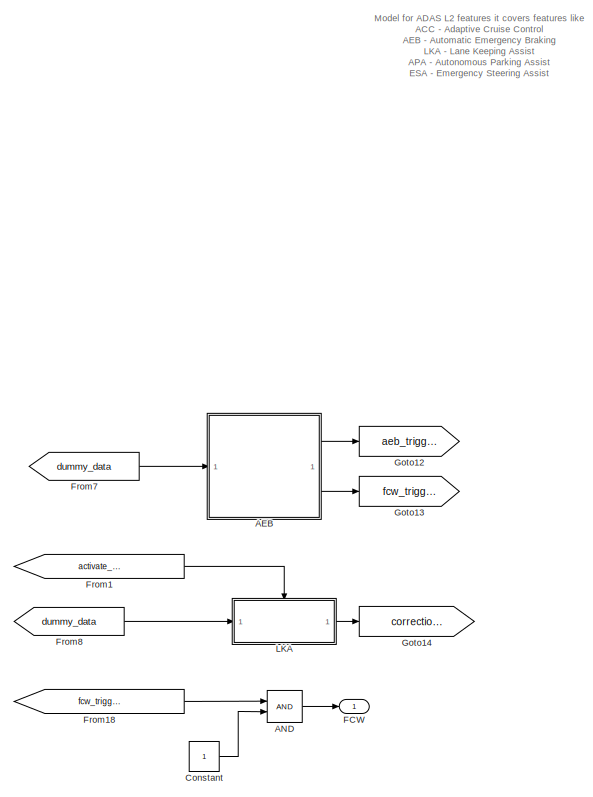
[diagram: root canvas - part 1/4, central region]
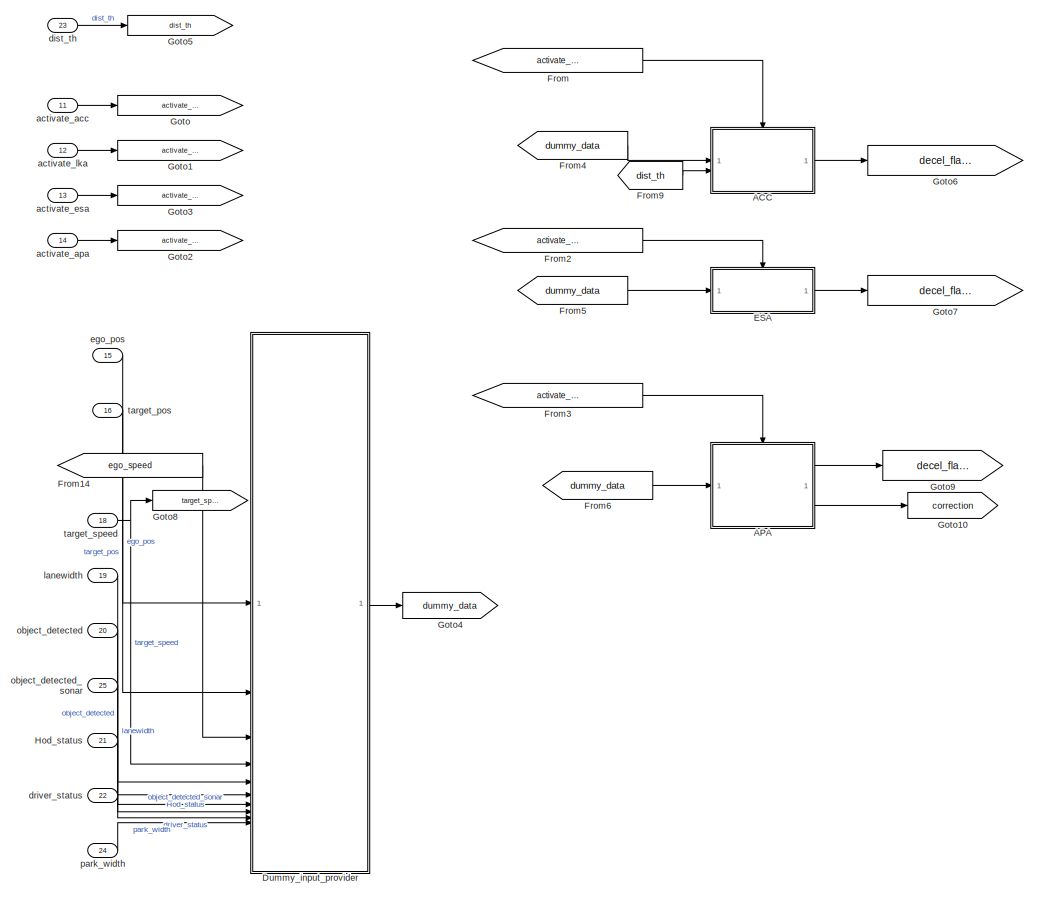
[diagram: root canvas - part 2/4, left side, full height]
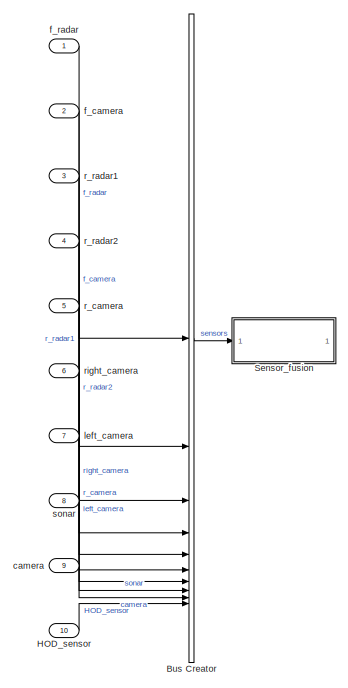
[diagram: root canvas - part 3/4, middle left region]
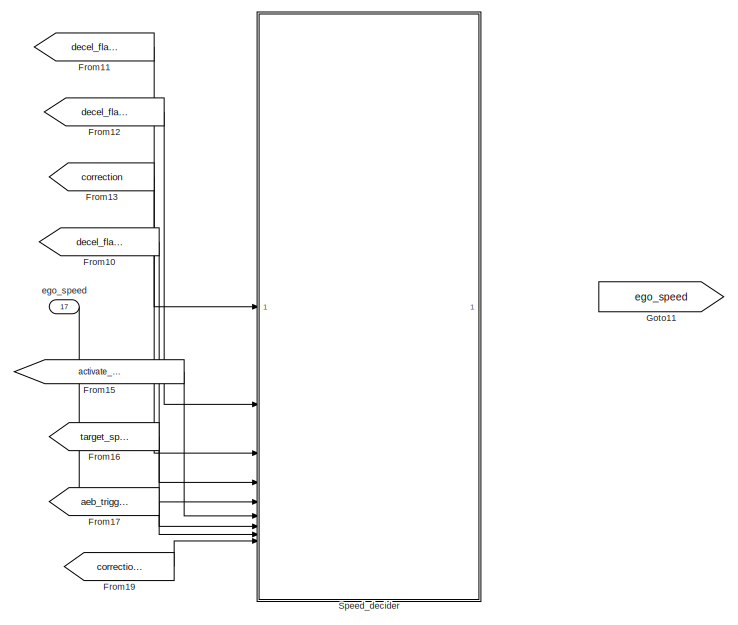
[diagram: root canvas - part 4/4, middle right region]
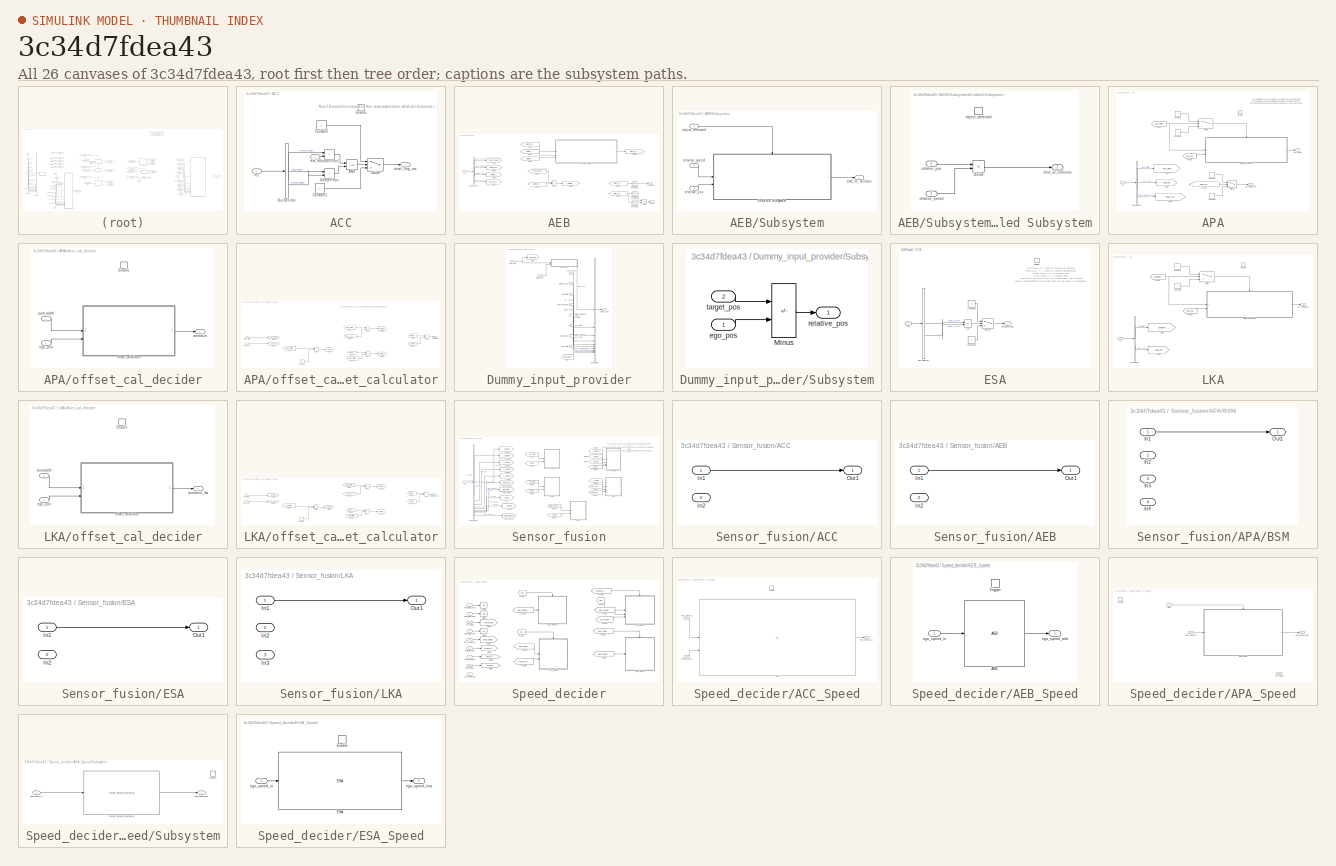
[diagram: thumbnail index - all 26 canvases of the model, root first then tree order]
MODEL slx_3c34d7fdea43
KIND model
CONFIG AbsTol = auto
CONFIG EnableMultiTasking = off
CONFIG FixedStep = auto
CONFIG MaxStep = auto
CONFIG MinStep = auto
CONFIG RelTol = 1e-3
CONFIG SampleTimeConstraint = Unconstrained
CONFIG SolverName = VariableStepAuto
CONFIG StartTime = 0.0
CONFIG StopTime = 10.0
BLOCK [SubSystem] ACC
  TreatAsAtomicUnit = on
BLOCK [Logic] ACC/AND
  AllPortsSameDT = off
  IconShape = distinctive
  OutDataTypeStr = boolean
BLOCK [BusSelector] ACC/Bus Selector
  OutputSignals = relative_pos,ego_speed,target_speed
BLOCK [Constant] ACC/Constant
BLOCK [Constant] ACC/Constant1
  Value = 0
BLOCK [EnablePort] ACC/Enable
  StatesWhenEnabling = reset
BLOCK [RelationalOperator] ACC/GreaterThan
  InputSameDT = off
  Operator = >
  OutDataTypeStr = boolean
  RndMeth = Simplest
BLOCK [RelationalOperator] ACC/GreaterThan1
  InputSameDT = off
  Operator = >
  OutDataTypeStr = boolean
  RndMeth = Simplest
BLOCK [Inport] ACC/In1
BLOCK [Switch] ACC/Switch
  Criteria = u2 ~= 0
  InputSameDT = off
  SaturateOnIntegerOverflow = off
BLOCK [Outport] ACC/decel_flag_acc
BLOCK [Inport] ACC/dist_th
  Port = 2
BLOCK [SubSystem] AEB
BLOCK [Logic] AEB/AND
  AllPortsSameDT = off
  IconShape = distinctive
  OutDataTypeStr = boolean
BLOCK [BusSelector] AEB/Bus Selector
  OutputSignals = ego_speed,object_detected,relative_pos,target_speed
BLOCK [Reference] AEB/Compare To Constant  REF=simulink/Logic and Bit
Operations/Compare
To Constant
  SourceBlock = simulink/Logic and Bit\nOperations/Compare\nTo Constant
  SourceType = Compare To Constant
BLOCK [Reference] AEB/Compare To Constant1  REF=simulink/Logic and Bit
Operations/Compare
To Constant
  SourceBlock = simulink/Logic and Bit\nOperations/Compare\nTo Constant
  SourceType = Compare To Constant
BLOCK [Reference] AEB/Compare To Constant2  REF=simulink/Logic and Bit
Operations/Compare
To Constant
  SourceBlock = simulink/Logic and Bit\nOperations/Compare\nTo Constant
  SourceType = Compare To Constant
BLOCK [From] AEB/From
  GotoTag = object_detected
BLOCK [From] AEB/From1
  GotoTag = time_to_collision
BLOCK [From] AEB/From2
  GotoTag = target_speed
BLOCK [From] AEB/From3
  GotoTag = relative_pos
BLOCK [From] AEB/From4
  GotoTag = relative_speed
BLOCK [From] AEB/From5
  GotoTag = ego_speed
BLOCK [From] AEB/From6
  GotoTag = time_to_collision
BLOCK [Goto] AEB/Goto
  GotoTag = ego_speed
BLOCK [Goto] AEB/Goto1
  GotoTag = target_speed
BLOCK [Goto] AEB/Goto2
  GotoTag = object_detected
BLOCK [Goto] AEB/Goto3
  GotoTag = relative_pos
BLOCK [Goto] AEB/Goto4
  GotoTag = relative_speed
BLOCK [Goto] AEB/Goto5
  GotoTag = time_to_collision
BLOCK [Inport] AEB/In1
BLOCK [Sum] AEB/Minus
  IconShape = rectangular
  Inputs = +-
BLOCK [SubSystem] AEB/Subsystem
BLOCK [SubSystem] AEB/Subsystem/Enabled Subsystem
  TreatAsAtomicUnit = on
BLOCK [Product] AEB/Subsystem/Enabled Subsystem/Divide
  Inputs = */
BLOCK [EnablePort] AEB/Subsystem/Enabled Subsystem/object_detected
BLOCK [Inport] AEB/Subsystem/Enabled Subsystem/relative_pos
  Port = 2
BLOCK [Inport] AEB/Subsystem/Enabled Subsystem/relative_speed
BLOCK [Outport] AEB/Subsystem/Enabled Subsystem/time_to_collision
BLOCK [Inport] AEB/Subsystem/object_detected
BLOCK [Inport] AEB/Subsystem/relative_pos
  Port = 3
BLOCK [Inport] AEB/Subsystem/relative_speed
  Port = 2
BLOCK [Outport] AEB/Subsystem/time_to_collision
BLOCK [Outport] AEB/aeb_trigger
BLOCK [Outport] AEB/fcw_trigger
  Port = 2
BLOCK [Logic] AND
  AllPortsSameDT = off
  IconShape = distinctive
  OutDataTypeStr = boolean
BLOCK [SubSystem] APA
  TreatAsAtomicUnit = on
BLOCK [BusSelector] APA/Bus Selector
  OutputSignals = park_width,ego_pos,object_detected_sonar
BLOCK [Constant] APA/Constant
BLOCK [Constant] APA/Constant1
BLOCK [Constant] APA/Constant2
BLOCK [Constant] APA/Constant3
  Value = 0
BLOCK [EnablePort] APA/Enable
BLOCK [From] APA/From
  GotoTag = park_width
BLOCK [From] APA/From1
  GotoTag = object_detected_sonar
BLOCK [From] APA/From3
  GotoTag = ego_pos
BLOCK [Goto] APA/Goto
  GotoTag = park_width
BLOCK [Goto] APA/Goto1
  GotoTag = object_detected_sonar
BLOCK [Goto] APA/Goto2
  GotoTag = ego_pos
BLOCK [Inport] APA/In1
BLOCK [Switch] APA/Switch
  InputSameDT = off
  SaturateOnIntegerOverflow = off
  Threshold = 2.4
BLOCK [Switch] APA/Switch1
  Criteria = u2 ~= 0
  InputSameDT = off
  SaturateOnIntegerOverflow = off
BLOCK [Outport] APA/correction
  Port = 2
BLOCK [Outport] APA/decel_flag_apa
BLOCK [SubSystem] APA/offset_cal_decider
BLOCK [EnablePort] APA/offset_cal_decider/Enable
BLOCK [Outport] APA/offset_cal_decider/correction
BLOCK [Inport] APA/offset_cal_decider/ego_pos
  Port = 2
BLOCK [SubSystem] APA/offset_cal_decider/offset_calculator
BLOCK [Constant] APA/offset_cal_decider/offset_calculator/Constant
  Value = 2
BLOCK [Product] APA/offset_cal_decider/offset_calculator/Divide
  Inputs = */
BLOCK [From] APA/offset_cal_decider/offset_calculator/From
  GotoTag = park_width
BLOCK [From] APA/offset_cal_decider/offset_calculator/From1
  GotoTag = ego_pos
BLOCK [From] APA/offset_cal_decider/offset_calculator/From2
  GotoTag = park_width
BLOCK [From] APA/offset_cal_decider/offset_calculator/From3
  GotoTag = offset_r
BLOCK [From] APA/offset_cal_decider/offset_calculator/From4
  GotoTag = park_width
BLOCK [From] APA/offset_cal_decider/offset_calculator/From5
  GotoTag = offset_l
BLOCK [From] APA/offset_cal_decider/offset_calculator/From6
  GotoTag = center
BLOCK [Goto] APA/offset_cal_decider/offset_calculator/Goto
  GotoTag = center
BLOCK [Goto] APA/offset_cal_decider/offset_calculator/Goto1
  GotoTag = park_width
BLOCK [Goto] APA/offset_cal_decider/offset_calculator/Goto2
  GotoTag = offset_r
BLOCK [Goto] APA/offset_cal_decider/offset_calculator/Goto3
  GotoTag = ego_pos
BLOCK [Goto] APA/offset_cal_decider/offset_calculator/Goto4
  GotoTag = offset_l
BLOCK [Sum] APA/offset_cal_decider/offset_calculator/Minus
  IconShape = rectangular
  Inputs = +-
BLOCK [Sum] APA/offset_cal_decider/offset_calculator/Minus1
  IconShape = rectangular
  Inputs = +-
BLOCK [Sum] APA/offset_cal_decider/offset_calculator/Plus
  IconShape = rectangular
BLOCK [Outport] APA/offset_cal_decider/offset_calculator/correction
BLOCK [Inport] APA/offset_cal_decider/offset_calculator/ego_pos
  Port = 2
BLOCK [Inport] APA/offset_cal_decider/offset_calculator/park_width
BLOCK [Inport] APA/offset_cal_decider/park_width
BLOCK [BusCreator] Bus Creator
  DisplayOption = bar
  InheritFromInputs = on
  Inputs = 10
BLOCK [Constant] Constant
BLOCK [SubSystem] Dummy_input_provider
BLOCK [BusCreator] Dummy_input_provider/Bus Creator
  DisplayOption = bar
  InheritFromInputs = on
  Inputs = 10
BLOCK [From] Dummy_input_provider/From
  GotoTag = ego_pos
BLOCK [Goto] Dummy_input_provider/Goto
  GotoTag = ego_pos
BLOCK [Inport] Dummy_input_provider/Hod_status
  Port = 8
BLOCK [SubSystem] Dummy_input_provider/Subsystem
BLOCK [Sum] Dummy_input_provider/Subsystem/Minus
  IconShape = rectangular
  Inputs = +-
BLOCK [Inport] Dummy_input_provider/Subsystem/ego_pos
BLOCK [Outport] Dummy_input_provider/Subsystem/relative_pos
BLOCK [Inport] Dummy_input_provider/Subsystem/target_pos
  Port = 2
BLOCK [Inport] Dummy_input_provider/driver_status
  Port = 9
BLOCK [Outport] Dummy_input_provider/dummy_data
BLOCK [Inport] Dummy_input_provider/ego_pos
BLOCK [Inport] Dummy_input_provider/ego_speed
  Port = 3
BLOCK [Inport] Dummy_input_provider/lanewidth
  Port = 5
BLOCK [Inport] Dummy_input_provider/object_detected
  Port = 6
BLOCK [Inport] Dummy_input_provider/object_detected_sonar
  Port = 7
BLOCK [Inport] Dummy_input_provider/park_width
  Port = 10
BLOCK [Inport] Dummy_input_provider/target_pos
  Port = 2
BLOCK [Inport] Dummy_input_provider/target_speed
  Port = 4
BLOCK [SubSystem] ESA
  TreatAsAtomicUnit = on
BLOCK [BusSelector] ESA/Bus Selector
  OutputSignals = Hod_status,driver_status
BLOCK [Constant] ESA/Constant
BLOCK [Constant] ESA/Constant1
  Value = 0
BLOCK [EnablePort] ESA/Enable
BLOCK [Inport] ESA/In1
BLOCK [Logic] ESA/OR
  AllPortsSameDT = off
  IconShape = distinctive
  Operator = OR
  OutDataTypeStr = boolean
BLOCK [Switch] ESA/Switch
  Criteria = u2 ~= 0
  InputSameDT = off
  SaturateOnIntegerOverflow = off
BLOCK [Outport] ESA/decel_esa_flag
BLOCK [Outport] FCW
BLOCK [From] From
  GotoTag = activate_acc
BLOCK [From] From1
  GotoTag = activate_lka
BLOCK [From] From10
  GotoTag = decel_flag_acc
BLOCK [From] From11
  GotoTag = decel_flag_esa
BLOCK [From] From12
  GotoTag = decel_flag_apa
BLOCK [From] From13
  GotoTag = correction
BLOCK [From] From14
  GotoTag = ego_speed
BLOCK [From] From15
  GotoTag = activate_apa
BLOCK [From] From16
  GotoTag = target_speed
BLOCK [From] From17
  GotoTag = aeb_trigger
BLOCK [From] From18
  GotoTag = fcw_trigger
BLOCK [From] From19
  GotoTag = correction_lka
BLOCK [From] From2
  GotoTag = activate_esa
BLOCK [From] From3
  GotoTag = activate_apa
BLOCK [From] From4
  GotoTag = dummy_data
BLOCK [From] From5
  GotoTag = dummy_data
BLOCK [From] From6
  GotoTag = dummy_data
BLOCK [From] From7
  GotoTag = dummy_data
BLOCK [From] From8
  GotoTag = dummy_data
BLOCK [From] From9
  GotoTag = dist_th
BLOCK [Goto] Goto
  GotoTag = activate_acc
BLOCK [Goto] Goto1
  GotoTag = activate_lka
BLOCK [Goto] Goto10
  GotoTag = correction
BLOCK [Goto] Goto11
  GotoTag = ego_speed
BLOCK [Goto] Goto12
  GotoTag = aeb_trigger
BLOCK [Goto] Goto13
  GotoTag = fcw_trigger
BLOCK [Goto] Goto14
  GotoTag = correction_lka
BLOCK [Goto] Goto2
  GotoTag = activate_apa
BLOCK [Goto] Goto3
  GotoTag = activate_esa
BLOCK [Goto] Goto4
  GotoTag = dummy_data
BLOCK [Goto] Goto5
  GotoTag = dist_th
BLOCK [Goto] Goto6
  GotoTag = decel_flag_acc
BLOCK [Goto] Goto7
  GotoTag = decel_flag_esa
BLOCK [Goto] Goto8
  GotoTag = target_speed
BLOCK [Goto] Goto9
  GotoTag = decel_flag_apa
BLOCK [Inport] HOD_sensor
  Port = 10
BLOCK [Inport] Hod_status
  Port = 21
BLOCK [SubSystem] LKA
  TreatAsAtomicUnit = on
BLOCK [BusSelector] LKA/Bus Selector
  OutputSignals = lanewidth,ego_pos
BLOCK [Constant] LKA/Constant
BLOCK [Constant] LKA/Constant1
BLOCK [EnablePort] LKA/Enable
BLOCK [From] LKA/From
  GotoTag = lanewidth
BLOCK [From] LKA/From3
  GotoTag = ego_pos
BLOCK [Goto] LKA/Goto
  GotoTag = lanewidth
BLOCK [Goto] LKA/Goto2
  GotoTag = ego_pos
BLOCK [Inport] LKA/In1
BLOCK [Switch] LKA/Switch
  InputSameDT = off
  SaturateOnIntegerOverflow = off
  Threshold = 3.5
BLOCK [Outport] LKA/correction_lka
BLOCK [SubSystem] LKA/offset_cal_decider
BLOCK [EnablePort] LKA/offset_cal_decider/Enable
BLOCK [Outport] LKA/offset_cal_decider/correction_lka
BLOCK [Inport] LKA/offset_cal_decider/ego_pos
  Port = 2
BLOCK [Inport] LKA/offset_cal_decider/lanewidth
BLOCK [SubSystem] LKA/offset_cal_decider/offset_calculator
BLOCK [Constant] LKA/offset_cal_decider/offset_calculator/Constant
  Value = 2
BLOCK [Product] LKA/offset_cal_decider/offset_calculator/Divide
  Inputs = */
BLOCK [From] LKA/offset_cal_decider/offset_calculator/From
  GotoTag = lanewidth
BLOCK [From] LKA/offset_cal_decider/offset_calculator/From1
  GotoTag = ego_pos
BLOCK [From] LKA/offset_cal_decider/offset_calculator/From2
  GotoTag = lanewidth
BLOCK [From] LKA/offset_cal_decider/offset_calculator/From3
  GotoTag = offset_r
BLOCK [From] LKA/offset_cal_decider/offset_calculator/From4
  GotoTag = lanewidth
BLOCK [From] LKA/offset_cal_decider/offset_calculator/From5
  GotoTag = offset_l
BLOCK [From] LKA/offset_cal_decider/offset_calculator/From6
  GotoTag = center
BLOCK [Goto] LKA/offset_cal_decider/offset_calculator/Goto
  GotoTag = center
BLOCK [Goto] LKA/offset_cal_decider/offset_calculator/Goto1
  GotoTag = lanewidth
BLOCK [Goto] LKA/offset_cal_decider/offset_calculator/Goto2
  GotoTag = offset_r
BLOCK [Goto] LKA/offset_cal_decider/offset_calculator/Goto3
  GotoTag = ego_pos
BLOCK [Goto] LKA/offset_cal_decider/offset_calculator/Goto4
  GotoTag = offset_l
BLOCK [Sum] LKA/offset_cal_decider/offset_calculator/Minus
  IconShape = rectangular
  Inputs = +-
BLOCK [Sum] LKA/offset_cal_decider/offset_calculator/Minus1
  IconShape = rectangular
  Inputs = +-
BLOCK [Sum] LKA/offset_cal_decider/offset_calculator/Plus
  IconShape = rectangular
BLOCK [Outport] LKA/offset_cal_decider/offset_calculator/correction_lka
BLOCK [Inport] LKA/offset_cal_decider/offset_calculator/ego_pos
  Port = 2
BLOCK [Inport] LKA/offset_cal_decider/offset_calculator/lanewidth
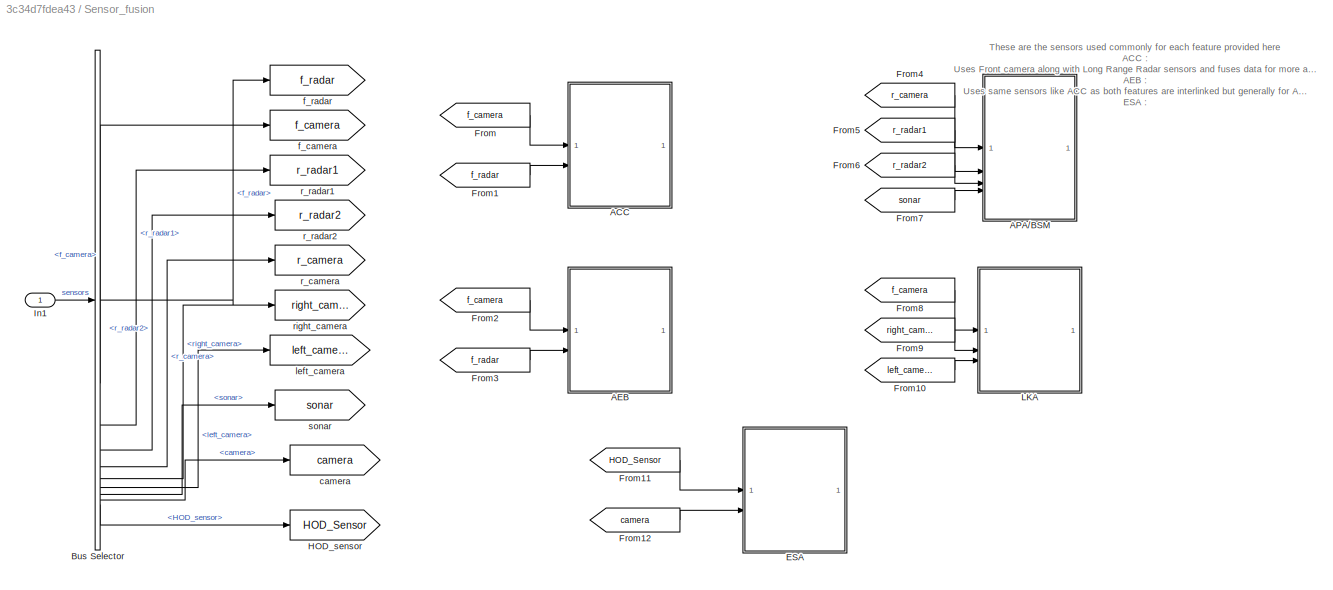
BLOCK [SubSystem] Sensor_fusion
BLOCK [SubSystem] Sensor_fusion/ACC
BLOCK [Inport] Sensor_fusion/ACC/In1
BLOCK [Inport] Sensor_fusion/ACC/In2
  Port = 2
BLOCK [Outport] Sensor_fusion/ACC/Out1
BLOCK [SubSystem] Sensor_fusion/AEB
BLOCK [Inport] Sensor_fusion/AEB/In1
BLOCK [Inport] Sensor_fusion/AEB/In2
  Port = 2
BLOCK [Outport] Sensor_fusion/AEB/Out1
BLOCK [SubSystem] Sensor_fusion/APA//BSM
BLOCK [Inport] Sensor_fusion/APA//BSM/In1
BLOCK [Inport] Sensor_fusion/APA//BSM/In2
  Port = 2
BLOCK [Inport] Sensor_fusion/APA//BSM/In3
  Port = 3
BLOCK [Inport] Sensor_fusion/APA//BSM/In4
  Port = 4
BLOCK [Outport] Sensor_fusion/APA//BSM/Out1
BLOCK [BusSelector] Sensor_fusion/Bus Selector
  OutputSignals = f_radar,f_camera,r_radar1,r_radar2,r_camera,right_camera,left_camera,sonar,camera,HOD_sensor
BLOCK [SubSystem] Sensor_fusion/ESA
BLOCK [Inport] Sensor_fusion/ESA/In1
BLOCK [Inport] Sensor_fusion/ESA/In2
  Port = 2
BLOCK [Outport] Sensor_fusion/ESA/Out1
BLOCK [From] Sensor_fusion/From
  GotoTag = f_camera
BLOCK [From] Sensor_fusion/From1
  GotoTag = f_radar
BLOCK [From] Sensor_fusion/From10
  GotoTag = left_camera
BLOCK [From] Sensor_fusion/From11
  GotoTag = HOD_Sensor
BLOCK [From] Sensor_fusion/From12
  GotoTag = camera
BLOCK [From] Sensor_fusion/From2
  GotoTag = f_camera
BLOCK [From] Sensor_fusion/From3
  GotoTag = f_radar
BLOCK [From] Sensor_fusion/From4
  GotoTag = r_camera
BLOCK [From] Sensor_fusion/From5
  GotoTag = r_radar1
BLOCK [From] Sensor_fusion/From6
  GotoTag = r_radar2
BLOCK [From] Sensor_fusion/From7
  GotoTag = sonar
BLOCK [From] Sensor_fusion/From8
  GotoTag = f_camera
BLOCK [From] Sensor_fusion/From9
  GotoTag = right_camera
BLOCK [Goto] Sensor_fusion/HOD_sensor
  GotoTag = HOD_Sensor
BLOCK [Inport] Sensor_fusion/In1
BLOCK [SubSystem] Sensor_fusion/LKA
BLOCK [Inport] Sensor_fusion/LKA/In1
BLOCK [Inport] Sensor_fusion/LKA/In2
  Port = 2
BLOCK [Inport] Sensor_fusion/LKA/In3
  Port = 3
BLOCK [Outport] Sensor_fusion/LKA/Out1
BLOCK [Goto] Sensor_fusion/camera
  GotoTag = camera
BLOCK [Goto] Sensor_fusion/f_camera
  GotoTag = f_camera
BLOCK [Goto] Sensor_fusion/f_radar
  GotoTag = f_radar
BLOCK [Goto] Sensor_fusion/left_camera
  GotoTag = left_camera
BLOCK [Goto] Sensor_fusion/r_camera
  GotoTag = r_camera
BLOCK [Goto] Sensor_fusion/r_radar1
  GotoTag = r_radar1
BLOCK [Goto] Sensor_fusion/r_radar2 
  GotoTag = r_radar2
BLOCK [Goto] Sensor_fusion/right_camera
  GotoTag = right_camera
BLOCK [Goto] Sensor_fusion/sonar
  GotoTag = sonar
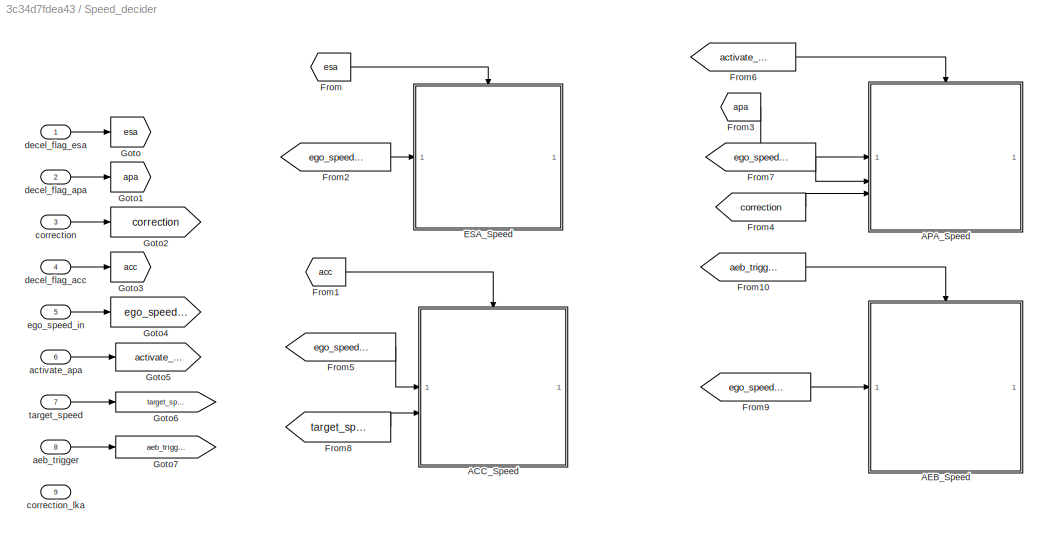
BLOCK [SubSystem] Speed_decider
BLOCK [SubSystem] Speed_decider/ACC_Speed
  TreatAsAtomicUnit = on
BLOCK [Reference] Speed_decider/ACC_Speed/ACC  REF=ACC_L2/ACC
  SourceBlock = ACC_L2/ACC
  SourceType = SubSystem
BLOCK [EnablePort] Speed_decider/ACC_Speed/Enable
BLOCK [Outport] Speed_decider/ACC_Speed/ego_speed_acc
BLOCK [Inport] Speed_decider/ACC_Speed/ego_speed_in
BLOCK [Inport] Speed_decider/ACC_Speed/target_speed
  Port = 2
BLOCK [SubSystem] Speed_decider/AEB_Speed
BLOCK [Reference] Speed_decider/AEB_Speed/AEB  REF=AEB_L2/AEB
  SourceBlock = AEB_L2/AEB
  SourceType = SubSystem
BLOCK [TriggerPort] Speed_decider/AEB_Speed/Trigger
  PortDimensions = 1
  StatesWhenEnabling = held
  VariantControl = (inherit)
BLOCK [Outport] Speed_decider/AEB_Speed/ego_speed_aeb
BLOCK [Inport] Speed_decider/AEB_Speed/ego_speed_in
BLOCK [SubSystem] Speed_decider/APA_Speed
  TreatAsAtomicUnit = on
BLOCK [EnablePort] Speed_decider/APA_Speed/Enable
BLOCK [SubSystem] Speed_decider/APA_Speed/Subsystem
BLOCK [EnablePort] Speed_decider/APA_Speed/Subsystem/Enable
BLOCK [Reference] Speed_decider/APA_Speed/Subsystem/Object_detection_braking  REF=APA_/Object_detection_braking
  SourceBlock = APA_/Object_detection_braking
  SourceType = SubSystem
BLOCK [Outport] Speed_decider/APA_Speed/Subsystem/ego_speed_apa
BLOCK [Inport] Speed_decider/APA_Speed/Subsystem/ego_speed_in
BLOCK [Inport] Speed_decider/APA_Speed/apa
BLOCK [Inport] Speed_decider/APA_Speed/correction
  Port = 3
BLOCK [Outport] Speed_decider/APA_Speed/ego_speed_apa
BLOCK [Inport] Speed_decider/APA_Speed/ego_speed_in
  Port = 2
BLOCK [SubSystem] Speed_decider/ESA_Speed
  TreatAsAtomicUnit = on
BLOCK [Reference] Speed_decider/ESA_Speed/ESA  REF=ESA_L2/ESA
  SourceBlock = ESA_L2/ESA
  SourceType = SubSystem
BLOCK [EnablePort] Speed_decider/ESA_Speed/Enable
BLOCK [Outport] Speed_decider/ESA_Speed/ego_speed_esa
BLOCK [Inport] Speed_decider/ESA_Speed/ego_speed_in
BLOCK [From] Speed_decider/From
  GotoTag = esa
BLOCK [From] Speed_decider/From1
  GotoTag = acc
BLOCK [From] Speed_decider/From10
  GotoTag = aeb_trigger
BLOCK [From] Speed_decider/From2
  GotoTag = ego_speed_in
BLOCK [From] Speed_decider/From3
  GotoTag = apa
BLOCK [From] Speed_decider/From4
  GotoTag = correction
BLOCK [From] Speed_decider/From5
  GotoTag = ego_speed_in
BLOCK [From] Speed_decider/From6
  GotoTag = activate_apa
BLOCK [From] Speed_decider/From7
  GotoTag = ego_speed_in
BLOCK [From] Speed_decider/From8
  GotoTag = target_speed
BLOCK [From] Speed_decider/From9
  GotoTag = ego_speed_in
BLOCK [Goto] Speed_decider/Goto
  GotoTag = esa
BLOCK [Goto] Speed_decider/Goto1
  GotoTag = apa
BLOCK [Goto] Speed_decider/Goto2
  GotoTag = correction
BLOCK [Goto] Speed_decider/Goto3
  GotoTag = acc
BLOCK [Goto] Speed_decider/Goto4
  GotoTag = ego_speed_in
BLOCK [Goto] Speed_decider/Goto5
  GotoTag = activate_apa
BLOCK [Goto] Speed_decider/Goto6
  GotoTag = target_speed
BLOCK [Goto] Speed_decider/Goto7
  GotoTag = aeb_trigger
BLOCK [Inport] Speed_decider/activate_apa
  Port = 6
BLOCK [Inport] Speed_decider/aeb_trigger
  Port = 8
BLOCK [Inport] Speed_decider/correction
  Port = 3
BLOCK [Inport] Speed_decider/correction_lka
  Port = 9
BLOCK [Inport] Speed_decider/decel_flag_acc
  Port = 4
BLOCK [Inport] Speed_decider/decel_flag_apa
  Port = 2
BLOCK [Inport] Speed_decider/decel_flag_esa
BLOCK [Inport] Speed_decider/ego_speed_in
  Port = 5
BLOCK [Inport] Speed_decider/target_speed
  Port = 7
BLOCK [Inport] activate_acc
  OutDataTypeStr = boolean
  Port = 11
BLOCK [Inport] activate_apa
  OutDataTypeStr = boolean
  Port = 14
BLOCK [Inport] activate_esa
  OutDataTypeStr = boolean
  Port = 13
BLOCK [Inport] activate_lka
  OutDataTypeStr = boolean
  Port = 12
BLOCK [Inport] camera
  Port = 9
BLOCK [Inport] dist_th
  Port = 23
BLOCK [Inport] driver_status
  Port = 22
BLOCK [Inport] ego_pos
  Port = 15
BLOCK [Inport] ego_speed
  Port = 17
BLOCK [Inport] f_camera
  Port = 2
BLOCK [Inport] f_radar
BLOCK [Inport] lanewidth
  Port = 19
BLOCK [Inport] left_camera
  Port = 7
BLOCK [Inport] object_detected
  Port = 20
BLOCK [Inport] object_detected_sonar
  Port = 25
BLOCK [Inport] park_width
  Port = 24
BLOCK [Inport] r_camera
  Port = 5
BLOCK [Inport] r_radar1
  Port = 3
BLOCK [Inport] r_radar2
  Port = 4
BLOCK [Inport] right_camera
  Port = 6
BLOCK [Inport] sonar
  Port = 8
BLOCK [Inport] target_pos
  Port = 16
BLOCK [Inport] target_speed
  Port = 18
ANNOTATION (root): Model for ADAS L2 features it covers features like ACC - Adaptive Cruise Control AEB - Automatic Emergency Braking LKA - Lane Keeping Assist APA - Autonomous Parking Assist ESA - Emergency Steering Assist FCW - Forward collision Warning We have other features like Contextual ACC, 360 camera , Hill Assist but these also use same sensors used and most commonly used features are the ones provided abo...<+317ch>
ANNOTATION ACC: Now if this condition becomes 1 then comes acceleration which will decelerate to reach target speed and continues till target is detected
ANNOTATION APA: Here we will get parking space width and calculate center and offsets of both from right line as well as left line By calculating these values we will get exact position of car while parking and apply corrections based on offsets and give an accurate steer needed to be given to park the car If any object is detected during parking we can give max brake command to halt the parking sequence
ANNOTATION APA/offset_cal_decider/offset_calculator: Same logic is used in LKA based on correction value steering input will be given and if any object detected then braking takes place
ANNOTATION ESA: Hod status = 0 - Hands on steering not detected Hod status = 1 - Hands on steering wheel detected Driver status = 0 - Unconscious driver Driver Status = 1 - Conscious driver If any one of the status is set that means driver is not attentive then we should decelerate te car till it stops and open doors for emergency
ANNOTATION Sensor_fusion: These are the sensors used commonly for each feature provided here ACC : Uses Front camera along with Long Range Radar sensors and fuses data for more accuracy AEB : Uses same sensors like ACC as both features are interlinked but generally for ACC we need to acitvate specificallly while AEB works automaticallly which we will discuss further in AEB block ESA : Uses steering wheel sensor and camera ...<+291ch>
LINE ACC/AND:1 -> ACC/Switch:2
LINE ACC/Bus Selector:1 -> ACC/GreaterThan1:1
LINE ACC/Bus Selector:2 -> ACC/GreaterThan:1
LINE ACC/Bus Selector:3 -> ACC/GreaterThan:2
LINE ACC/Constant1:1 -> ACC/Switch:3
LINE ACC/Constant:1 -> ACC/Switch:1
LINE ACC/GreaterThan1:1 -> ACC/AND:1
LINE ACC/GreaterThan:1 -> ACC/AND:2
LINE ACC/In1:1 -> ACC/Bus Selector:1
LINE ACC/Switch:1 -> ACC/decel_flag_acc:1
LINE ACC/dist_th:1 -> ACC/GreaterThan1:2
LINE ACC:1 -> Goto6:1
LINE AEB/AND:1 -> AEB/fcw_trigger:1
LINE AEB/Bus Selector:1 -> AEB/Goto:1
LINE AEB/Bus Selector:2 -> AEB/Goto2:1
LINE AEB/Bus Selector:3 -> AEB/Goto3:1
LINE AEB/Bus Selector:4 -> AEB/Goto1:1
LINE AEB/Compare To Constant1:1 -> AEB/AND:1
LINE AEB/Compare To Constant2:1 -> AEB/AND:2
LINE AEB/Compare To Constant:1 -> AEB/aeb_trigger:1
LINE AEB/From1:1 -> AEB/Compare To Constant:1
LINE AEB/From2:1 -> AEB/Minus:2
LINE AEB/From3:1 -> AEB/Subsystem:3
LINE AEB/From4:1 -> AEB/Subsystem:2
LINE AEB/From5:1 -> AEB/Minus:1
NET AEB/From6:1 -> AEB/Compare To Constant1:1, AEB/Compare To Constant2:1
LINE AEB/From:1 -> AEB/Subsystem:1
LINE AEB/In1:1 -> AEB/Bus Selector:1
LINE AEB/Minus:1 -> AEB/Goto4:1
LINE AEB/Subsystem/Enabled Subsystem/Divide:1 -> AEB/Subsystem/Enabled Subsystem/time_to_collision:1
LINE AEB/Subsystem/Enabled Subsystem/relative_pos:1 -> AEB/Subsystem/Enabled Subsystem/Divide:1
LINE AEB/Subsystem/Enabled Subsystem/relative_speed:1 -> AEB/Subsystem/Enabled Subsystem/Divide:2
LINE AEB/Subsystem/Enabled Subsystem:1 -> AEB/Subsystem/time_to_collision:1
LINE AEB/Subsystem/object_detected:1 -> AEB/Subsystem/Enabled Subsystem:enable
LINE AEB/Subsystem/relative_pos:1 -> AEB/Subsystem/Enabled Subsystem:2
LINE AEB/Subsystem/relative_speed:1 -> AEB/Subsystem/Enabled Subsystem:1
LINE AEB/Subsystem:1 -> AEB/Goto5:1
LINE AEB:1 -> Goto12:1
LINE AEB:2 -> Goto13:1
LINE AND:1 -> FCW:1
LINE APA/Bus Selector:1 -> APA/Goto:1
LINE APA/Bus Selector:2 -> APA/Goto2:1
LINE APA/Bus Selector:3 -> APA/Goto1:1
LINE APA/Constant1:1 -> APA/Switch:3
LINE APA/Constant2:1 -> APA/Switch1:1
LINE APA/Constant3:1 -> APA/Switch1:3
LINE APA/Constant:1 -> APA/Switch:1
LINE APA/From1:1 -> APA/Switch1:2
LINE APA/From3:1 -> APA/offset_cal_decider:2
NET APA/From:1 -> APA/Switch:2, APA/offset_cal_decider:1
LINE APA/In1:1 -> APA/Bus Selector:1
LINE APA/Switch1:1 -> APA/decel_flag_apa:1
LINE APA/Switch:1 -> APA/offset_cal_decider:enable
LINE APA/offset_cal_decider/ego_pos:1 -> APA/offset_cal_decider/offset_calculator:2
LINE APA/offset_cal_decider/offset_calculator/Constant:1 -> APA/offset_cal_decider/offset_calculator/Divide:2
LINE APA/offset_cal_decider/offset_calculator/Divide:1 -> APA/offset_cal_decider/offset_calculator/Goto:1
LINE APA/offset_cal_decider/offset_calculator/From1:1 -> APA/offset_cal_decider/offset_calculator/Minus:2
LINE APA/offset_cal_decider/offset_calculator/From2:1 -> APA/offset_cal_decider/offset_calculator/Minus:1
LINE APA/offset_cal_decider/offset_calculator/From3:1 -> APA/offset_cal_decider/offset_calculator/Minus1:1
LINE APA/offset_cal_decider/offset_calculator/From4:1 -> APA/offset_cal_decider/offset_calculator/Minus1:2
LINE APA/offset_cal_decider/offset_calculator/From5:1 -> APA/offset_cal_decider/offset_calculator/Plus:1
LINE APA/offset_cal_decider/offset_calculator/From6:1 -> APA/offset_cal_decider/offset_calculator/Plus:2
LINE APA/offset_cal_decider/offset_calculator/From:1 -> APA/offset_cal_decider/offset_calculator/Divide:1
LINE APA/offset_cal_decider/offset_calculator/Minus1:1 -> APA/offset_cal_decider/offset_calculator/Goto4:1
LINE APA/offset_cal_decider/offset_calculator/Minus:1 -> APA/offset_cal_decider/offset_calculator/Goto2:1
LINE APA/offset_cal_decider/offset_calculator/Plus:1 -> APA/offset_cal_decider/offset_calculator/correction:1
LINE APA/offset_cal_decider/offset_calculator/ego_pos:1 -> APA/offset_cal_decider/offset_calculator/Goto3:1
LINE APA/offset_cal_decider/offset_calculator/park_width:1 -> APA/offset_cal_decider/offset_calculator/Goto1:1
LINE APA/offset_cal_decider/offset_calculator:1 -> APA/offset_cal_decider/correction:1
LINE APA/offset_cal_decider/park_width:1 -> APA/offset_cal_decider/offset_calculator:1
LINE APA/offset_cal_decider:1 -> APA/correction:1
LINE APA:1 -> Goto9:1
LINE APA:2 -> Goto10:1
LINE Bus Creator:1 -> Sensor_fusion:1
LINE Constant:1 -> AND:2
LINE Dummy_input_provider/Bus Creator:1 -> Dummy_input_provider/dummy_data:1
LINE Dummy_input_provider/From:1 -> Dummy_input_provider/Bus Creator:10
LINE Dummy_input_provider/Hod_status:1 -> Dummy_input_provider/Bus Creator:7
LINE Dummy_input_provider/Subsystem/Minus:1 -> Dummy_input_provider/Subsystem/relative_pos:1
LINE Dummy_input_provider/Subsystem/ego_pos:1 -> Dummy_input_provider/Subsystem/Minus:2
LINE Dummy_input_provider/Subsystem/target_pos:1 -> Dummy_input_provider/Subsystem/Minus:1
LINE Dummy_input_provider/Subsystem:1 -> Dummy_input_provider/Bus Creator:1
LINE Dummy_input_provider/driver_status:1 -> Dummy_input_provider/Bus Creator:8
NET Dummy_input_provider/ego_pos:1 -> Dummy_input_provider/Goto:1, Dummy_input_provider/Subsystem:1
LINE Dummy_input_provider/ego_speed:1 -> Dummy_input_provider/Bus Creator:2
LINE Dummy_input_provider/lanewidth:1 -> Dummy_input_provider/Bus Creator:4
LINE Dummy_input_provider/object_detected:1 -> Dummy_input_provider/Bus Creator:5
LINE Dummy_input_provider/object_detected_sonar:1 -> Dummy_input_provider/Bus Creator:6
LINE Dummy_input_provider/park_width:1 -> Dummy_input_provider/Bus Creator:9
LINE Dummy_input_provider/target_pos:1 -> Dummy_input_provider/Subsystem:2
LINE Dummy_input_provider/target_speed:1 -> Dummy_input_provider/Bus Creator:3
LINE Dummy_input_provider:1 -> Goto4:1
LINE ESA/Bus Selector:1 -> ESA/OR:1
LINE ESA/Bus Selector:2 -> ESA/OR:2
LINE ESA/Constant1:1 -> ESA/Switch:3
LINE ESA/Constant:1 -> ESA/Switch:1
LINE ESA/In1:1 -> ESA/Bus Selector:1
LINE ESA/OR:1 -> ESA/Switch:2
LINE ESA/Switch:1 -> ESA/decel_esa_flag:1
LINE ESA:1 -> Goto7:1
LINE From10:1 -> Speed_decider:4
LINE From11:1 -> Speed_decider:1
LINE From12:1 -> Speed_decider:2
LINE From13:1 -> Speed_decider:3
LINE From14:1 -> Dummy_input_provider:3
LINE From15:1 -> Speed_decider:6
LINE From16:1 -> Speed_decider:7
LINE From17:1 -> Speed_decider:8
LINE From18:1 -> AND:1
LINE From19:1 -> Speed_decider:9
LINE From1:1 -> LKA:enable
LINE From2:1 -> ESA:enable
LINE From3:1 -> APA:enable
LINE From4:1 -> ACC:1
LINE From5:1 -> ESA:1
LINE From6:1 -> APA:1
LINE From7:1 -> AEB:1
LINE From8:1 -> LKA:1
LINE From9:1 -> ACC:2
LINE From:1 -> ACC:enable
LINE HOD_sensor:1 -> Bus Creator:10
LINE Hod_status:1 -> Dummy_input_provider:8
LINE LKA/Bus Selector:1 -> LKA/Goto:1
LINE LKA/Bus Selector:2 -> LKA/Goto2:1
LINE LKA/Constant1:1 -> LKA/Switch:3
LINE LKA/Constant:1 -> LKA/Switch:1
LINE LKA/From3:1 -> LKA/offset_cal_decider:2
NET LKA/From:1 -> LKA/Switch:2, LKA/offset_cal_decider:1
LINE LKA/In1:1 -> LKA/Bus Selector:1
LINE LKA/Switch:1 -> LKA/offset_cal_decider:enable
LINE LKA/offset_cal_decider/ego_pos:1 -> LKA/offset_cal_decider/offset_calculator:2
LINE LKA/offset_cal_decider/lanewidth:1 -> LKA/offset_cal_decider/offset_calculator:1
LINE LKA/offset_cal_decider/offset_calculator/Constant:1 -> LKA/offset_cal_decider/offset_calculator/Divide:2
LINE LKA/offset_cal_decider/offset_calculator/Divide:1 -> LKA/offset_cal_decider/offset_calculator/Goto:1
LINE LKA/offset_cal_decider/offset_calculator/From1:1 -> LKA/offset_cal_decider/offset_calculator/Minus:2
LINE LKA/offset_cal_decider/offset_calculator/From2:1 -> LKA/offset_cal_decider/offset_calculator/Minus:1
LINE LKA/offset_cal_decider/offset_calculator/From3:1 -> LKA/offset_cal_decider/offset_calculator/Minus1:1
LINE LKA/offset_cal_decider/offset_calculator/From4:1 -> LKA/offset_cal_decider/offset_calculator/Minus1:2
LINE LKA/offset_cal_decider/offset_calculator/From5:1 -> LKA/offset_cal_decider/offset_calculator/Plus:1
LINE LKA/offset_cal_decider/offset_calculator/From6:1 -> LKA/offset_cal_decider/offset_calculator/Plus:2
LINE LKA/offset_cal_decider/offset_calculator/From:1 -> LKA/offset_cal_decider/offset_calculator/Divide:1
LINE LKA/offset_cal_decider/offset_calculator/Minus1:1 -> LKA/offset_cal_decider/offset_calculator/Goto4:1
LINE LKA/offset_cal_decider/offset_calculator/Minus:1 -> LKA/offset_cal_decider/offset_calculator/Goto2:1
LINE LKA/offset_cal_decider/offset_calculator/Plus:1 -> LKA/offset_cal_decider/offset_calculator/correction_lka:1
LINE LKA/offset_cal_decider/offset_calculator/ego_pos:1 -> LKA/offset_cal_decider/offset_calculator/Goto3:1
LINE LKA/offset_cal_decider/offset_calculator/lanewidth:1 -> LKA/offset_cal_decider/offset_calculator/Goto1:1
LINE LKA/offset_cal_decider/offset_calculator:1 -> LKA/offset_cal_decider/correction_lka:1
LINE LKA/offset_cal_decider:1 -> LKA/correction_lka:1
LINE LKA:1 -> Goto14:1
LINE Sensor_fusion/ACC/In1:1 -> Sensor_fusion/ACC/Out1:1
LINE Sensor_fusion/AEB/In1:1 -> Sensor_fusion/AEB/Out1:1
LINE Sensor_fusion/APA//BSM/In1:1 -> Sensor_fusion/APA//BSM/Out1:1
LINE Sensor_fusion/Bus Selector:1 -> Sensor_fusion/f_radar:1
LINE Sensor_fusion/Bus Selector:10 -> Sensor_fusion/HOD_sensor:1
LINE Sensor_fusion/Bus Selector:2 -> Sensor_fusion/f_camera:1
LINE Sensor_fusion/Bus Selector:3 -> Sensor_fusion/r_radar1:1
LINE Sensor_fusion/Bus Selector:4 -> Sensor_fusion/r_radar2 :1
LINE Sensor_fusion/Bus Selector:5 -> Sensor_fusion/r_camera:1
LINE Sensor_fusion/Bus Selector:6 -> Sensor_fusion/right_camera:1
LINE Sensor_fusion/Bus Selector:7 -> Sensor_fusion/left_camera:1
LINE Sensor_fusion/Bus Selector:8 -> Sensor_fusion/sonar:1
LINE Sensor_fusion/Bus Selector:9 -> Sensor_fusion/camera:1
LINE Sensor_fusion/ESA/In1:1 -> Sensor_fusion/ESA/Out1:1
LINE Sensor_fusion/From10:1 -> Sensor_fusion/LKA:3
LINE Sensor_fusion/From11:1 -> Sensor_fusion/ESA:1
LINE Sensor_fusion/From12:1 -> Sensor_fusion/ESA:2
LINE Sensor_fusion/From1:1 -> Sensor_fusion/ACC:2
LINE Sensor_fusion/From2:1 -> Sensor_fusion/AEB:1
LINE Sensor_fusion/From3:1 -> Sensor_fusion/AEB:2
LINE Sensor_fusion/From4:1 -> Sensor_fusion/APA//BSM:1
LINE Sensor_fusion/From5:1 -> Sensor_fusion/APA//BSM:2
LINE Sensor_fusion/From6:1 -> Sensor_fusion/APA//BSM:3
LINE Sensor_fusion/From7:1 -> Sensor_fusion/APA//BSM:4
LINE Sensor_fusion/From8:1 -> Sensor_fusion/LKA:1
LINE Sensor_fusion/From9:1 -> Sensor_fusion/LKA:2
LINE Sensor_fusion/From:1 -> Sensor_fusion/ACC:1
LINE Sensor_fusion/In1:1 -> Sensor_fusion/Bus Selector:1
LINE Sensor_fusion/LKA/In1:1 -> Sensor_fusion/LKA/Out1:1
LINE Speed_decider/ACC_Speed/ACC:1 -> Speed_decider/ACC_Speed/ego_speed_acc:1
LINE Speed_decider/ACC_Speed/ego_speed_in:1 -> Speed_decider/ACC_Speed/ACC:1
LINE Speed_decider/ACC_Speed/target_speed:1 -> Speed_decider/ACC_Speed/ACC:2
LINE Speed_decider/AEB_Speed/AEB:1 -> Speed_decider/AEB_Speed/ego_speed_aeb:1
LINE Speed_decider/AEB_Speed/ego_speed_in:1 -> Speed_decider/AEB_Speed/AEB:1
LINE Speed_decider/APA_Speed/Subsystem/Object_detection_braking:1 -> Speed_decider/APA_Speed/Subsystem/ego_speed_apa:1
LINE Speed_decider/APA_Speed/Subsystem/ego_speed_in:1 -> Speed_decider/APA_Speed/Subsystem/Object_detection_braking:1
LINE Speed_decider/APA_Speed/Subsystem:1 -> Speed_decider/APA_Speed/ego_speed_apa:1
LINE Speed_decider/APA_Speed/apa:1 -> Speed_decider/APA_Speed/Subsystem:enable
LINE Speed_decider/APA_Speed/ego_speed_in:1 -> Speed_decider/APA_Speed/Subsystem:1
LINE Speed_decider/ESA_Speed/ESA:1 -> Speed_decider/ESA_Speed/ego_speed_esa:1
LINE Speed_decider/ESA_Speed/ego_speed_in:1 -> Speed_decider/ESA_Speed/ESA:1
LINE Speed_decider/From10:1 -> Speed_decider/AEB_Speed:trigger
LINE Speed_decider/From1:1 -> Speed_decider/ACC_Speed:enable
LINE Speed_decider/From2:1 -> Speed_decider/ESA_Speed:1
LINE Speed_decider/From3:1 -> Speed_decider/APA_Speed:1
LINE Speed_decider/From4:1 -> Speed_decider/APA_Speed:3
LINE Speed_decider/From5:1 -> Speed_decider/ACC_Speed:1
LINE Speed_decider/From6:1 -> Speed_decider/APA_Speed:enable
LINE Speed_decider/From7:1 -> Speed_decider/APA_Speed:2
LINE Speed_decider/From8:1 -> Speed_decider/ACC_Speed:2
LINE Speed_decider/From9:1 -> Speed_decider/AEB_Speed:1
LINE Speed_decider/From:1 -> Speed_decider/ESA_Speed:enable
LINE Speed_decider/activate_apa:1 -> Speed_decider/Goto5:1
LINE Speed_decider/aeb_trigger:1 -> Speed_decider/Goto7:1
LINE Speed_decider/correction:1 -> Speed_decider/Goto2:1
LINE Speed_decider/decel_flag_acc:1 -> Speed_decider/Goto3:1
LINE Speed_decider/decel_flag_apa:1 -> Speed_decider/Goto1:1
LINE Speed_decider/decel_flag_esa:1 -> Speed_decider/Goto:1
LINE Speed_decider/ego_speed_in:1 -> Speed_decider/Goto4:1
LINE Speed_decider/target_speed:1 -> Speed_decider/Goto6:1
LINE activate_acc:1 -> Goto:1
LINE activate_apa:1 -> Goto2:1
LINE activate_esa:1 -> Goto3:1
LINE activate_lka:1 -> Goto1:1
LINE camera:1 -> Bus Creator:9
LINE dist_th:1 -> Goto5:1
LINE driver_status:1 -> Dummy_input_provider:9
LINE ego_pos:1 -> Dummy_input_provider:1
LINE ego_speed:1 -> Speed_decider:5
LINE f_camera:1 -> Bus Creator:2
LINE f_radar:1 -> Bus Creator:1
LINE lanewidth:1 -> Dummy_input_provider:5
LINE left_camera:1 -> Bus Creator:7
LINE object_detected:1 -> Dummy_input_provider:6
LINE object_detected_sonar:1 -> Dummy_input_provider:7
LINE park_width:1 -> Dummy_input_provider:10
LINE r_camera:1 -> Bus Creator:5
LINE r_radar1:1 -> Bus Creator:3
LINE r_radar2:1 -> Bus Creator:4
LINE right_camera:1 -> Bus Creator:6
LINE sonar:1 -> Bus Creator:8
LINE target_pos:1 -> Dummy_input_provider:2
NET target_speed:1 -> Dummy_input_provider:4, Goto8:1
note: NET lines group one-source signal fan-out (src -> all destinations, sorted); 1:1 wires keep LINE
